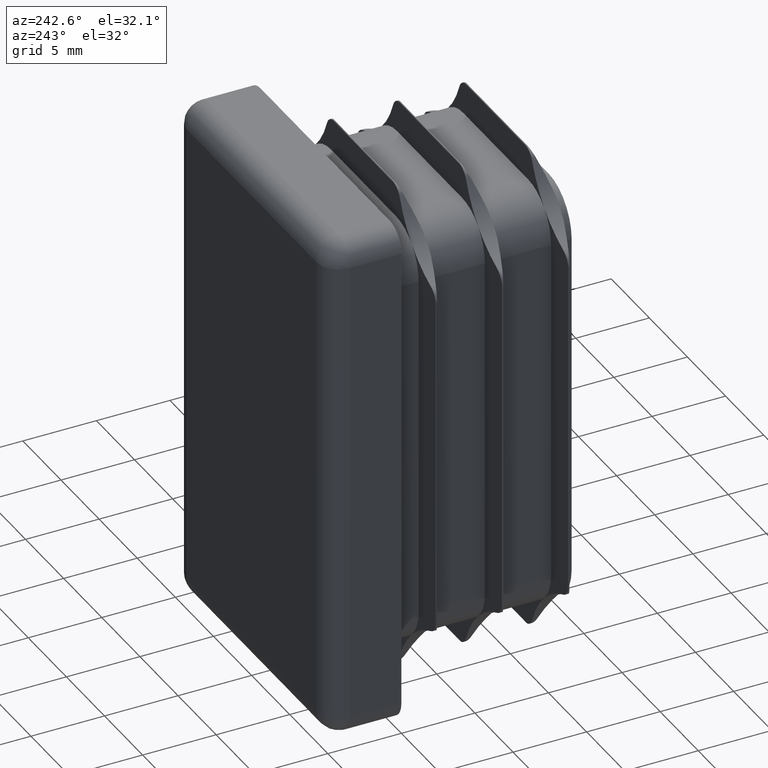
[diagram: clean part render]
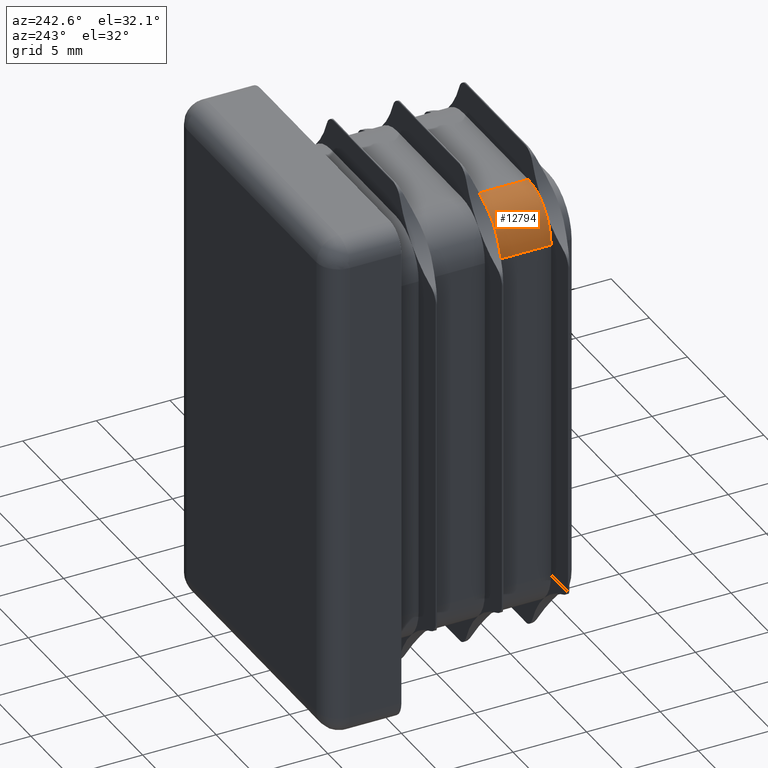
[diagram: same view with one face highlighted and labeled with its STEP entity id]
A machine part, auxiliary view. The second image highlights one B-rep face of the part: STEP entity #12794.
In plain terms, the highlighted cylindrical surface (partial cylindrical patch) has radius 3 mm, axis along (-0, 1, -0).
Its self-contained STEP definition (entity closure, byte-faithful):
#37 = DIRECTION ( 'NONE',  ( 0.000000000000000000, 1.000000000000000000, 0.000000000000000000 ) ) ;
#149 = CARTESIAN_POINT ( 'NONE',  ( -4.250000000000002665, -13.00000000000000000, 14.75000000000000178 ) ) ;
#264 = LINE ( 'NONE', #149, #11978 ) ;
#450 = CARTESIAN_POINT ( 'NONE',  ( -4.250000000000003553, -11.59999999999999964, 11.75000000000000000 ) ) ;
#605 = ORIENTED_EDGE ( 'NONE', *, *, #11848, .T. ) ;
#1316 = CARTESIAN_POINT ( 'NONE',  ( -4.250000000000003553, -8.099999999999999645, 11.75000000000000000 ) ) ;
#1362 = CARTESIAN_POINT ( 'NONE',  ( -4.250000000000003553, -8.099999999999999645, 11.75000000000000000 ) ) ;
#1507 = DIRECTION ( 'NONE',  ( -1.000000000000000000, 0.000000000000000000, -1.156482317317855356E-15 ) ) ;
#1566 = VECTOR ( 'NONE', #3776, 1000.000000000000000 ) ;
#1863 = EDGE_CURVE ( 'NONE', #8080, #17789, #19565, .T. ) ;
#3164 = DIRECTION ( 'NONE',  ( 0.000000000000000000, 1.000000000000000000, 0.000000000000000000 ) ) ;
#3225 = DIRECTION ( 'NONE',  ( -1.000000000000000000, 0.000000000000000000, -1.156482317317835635E-15 ) ) ;
#3235 = VERTEX_POINT ( 'NONE', #19477 ) ;
#3433 = DIRECTION ( 'NONE',  ( 0.000000000000000000, 1.000000000000000000, 0.000000000000000000 ) ) ;
#3516 = CIRCLE ( 'NONE', #17968, 3.000000000000041744 ) ;
#3776 = DIRECTION ( 'NONE',  ( -0.000000000000000000, 1.000000000000000000, -0.000000000000000000 ) ) ;
#4264 = CIRCLE ( 'NONE', #5682, 3.000000000000041744 ) ;
#4276 = EDGE_LOOP ( 'NONE', ( #6662, #8407, #11715, #6430, #10773, #605 ) ) ;
#4627 = EDGE_CURVE ( 'NONE', #12360, #3235, #3516, .T. ) ;
#4971 = DIRECTION ( 'NONE',  ( -1.000000000000000000, 0.000000000000000000, -1.156482317317835635E-15 ) ) ;
#5607 = CARTESIAN_POINT ( 'NONE',  ( -4.250000000000002665, -13.00000000000000000, 11.75000000000000000 ) ) ;
#5670 = DIRECTION ( 'NONE',  ( -0.000000000000000000, 1.000000000000000000, -0.000000000000000000 ) ) ;
#5682 = AXIS2_PLACEMENT_3D ( 'NONE', #1316, #14889, #7139 ) ;
#5843 = CARTESIAN_POINT ( 'NONE',  ( -7.250000000000002665, -11.59999999999999964, 11.74999999999999822 ) ) ;
#6430 = ORIENTED_EDGE ( 'NONE', *, *, #1863, .T. ) ;
#6496 = EDGE_CURVE ( 'NONE', #8080, #12360, #8523, .T. ) ;
#6662 = ORIENTED_EDGE ( 'NONE', *, *, #18085, .F. ) ;
#6680 = CARTESIAN_POINT ( 'NONE',  ( -7.250000000000002665, -13.00000000000000000, 11.74999999999999822 ) ) ;
#6696 = VERTEX_POINT ( 'NONE', #7477 ) ;
#7139 = DIRECTION ( 'NONE',  ( -1.000000000000000000, 0.000000000000000000, -1.156482317317855356E-15 ) ) ;
#7214 = DIRECTION ( 'NONE',  ( 0.000000000000000000, 0.000000000000000000, 1.000000000000000000 ) ) ;
#7477 = CARTESIAN_POINT ( 'NONE',  ( -4.250000000000002665, -8.100000000000017408, 14.75000000000000178 ) ) ;
#7798 = AXIS2_PLACEMENT_3D ( 'NONE', #450, #3433, #4971 ) ;
#8080 = VERTEX_POINT ( 'NONE', #5843 ) ;
#8170 = CARTESIAN_POINT ( 'NONE',  ( -6.371320343559712107, -11.59999999999999964, 13.87132034355970767 ) ) ;
#8407 = ORIENTED_EDGE ( 'NONE', *, *, #4627, .F. ) ;
#8523 = LINE ( 'NONE', #6680, #1566 ) ;
#10350 = AXIS2_PLACEMENT_3D ( 'NONE', #5607, #5670, #7214 ) ;
#10688 = DIRECTION ( 'NONE',  ( -0.000000000000000000, 1.000000000000000000, -0.000000000000000000 ) ) ;
#10773 = ORIENTED_EDGE ( 'NONE', *, *, #13424, .T. ) ;
#11192 = CIRCLE ( 'NONE', #17425, 3.000000000000092815 ) ;
#11715 = ORIENTED_EDGE ( 'NONE', *, *, #6496, .F. ) ;
#11848 = EDGE_CURVE ( 'NONE', #15205, #6696, #264, .T. ) ;
#11978 = VECTOR ( 'NONE', #10688, 1000.000000000000000 ) ;
#12360 = VERTEX_POINT ( 'NONE', #13524 ) ;
#12794 = ADVANCED_FACE ( 'NONE', ( #15939 ), #18795, .T. ) ;
#13424 = EDGE_CURVE ( 'NONE', #17789, #15205, #11192, .T. ) ;
#13524 = CARTESIAN_POINT ( 'NONE',  ( -7.250000000000002665, -8.100000000000017408, 11.74999999999999822 ) ) ;
#14889 = DIRECTION ( 'NONE',  ( 0.000000000000000000, 1.000000000000000000, 0.000000000000000000 ) ) ;
#15205 = VERTEX_POINT ( 'NONE', #16072 ) ;
#15345 = CARTESIAN_POINT ( 'NONE',  ( -4.250000000000003553, -11.59999999999999964, 11.75000000000000000 ) ) ;
#15939 = FACE_OUTER_BOUND ( 'NONE', #4276, .T. ) ;
#16072 = CARTESIAN_POINT ( 'NONE',  ( -4.250000000000002665, -11.59999999999999964, 14.75000000000000178 ) ) ;
#17425 = AXIS2_PLACEMENT_3D ( 'NONE', #15345, #3164, #3225 ) ;
#17789 = VERTEX_POINT ( 'NONE', #8170 ) ;
#17968 = AXIS2_PLACEMENT_3D ( 'NONE', #1362, #37, #1507 ) ;
#18085 = EDGE_CURVE ( 'NONE', #3235, #6696, #4264, .T. ) ;
#18795 = CYLINDRICAL_SURFACE ( 'NONE', #10350, 3.000000000000000888 ) ;
#19477 = CARTESIAN_POINT ( 'NONE',  ( -6.371320343559644606, -8.100000000000017408, 13.87132034355964016 ) ) ;
#19565 = CIRCLE ( 'NONE', #7798, 3.000000000000092815 ) ;